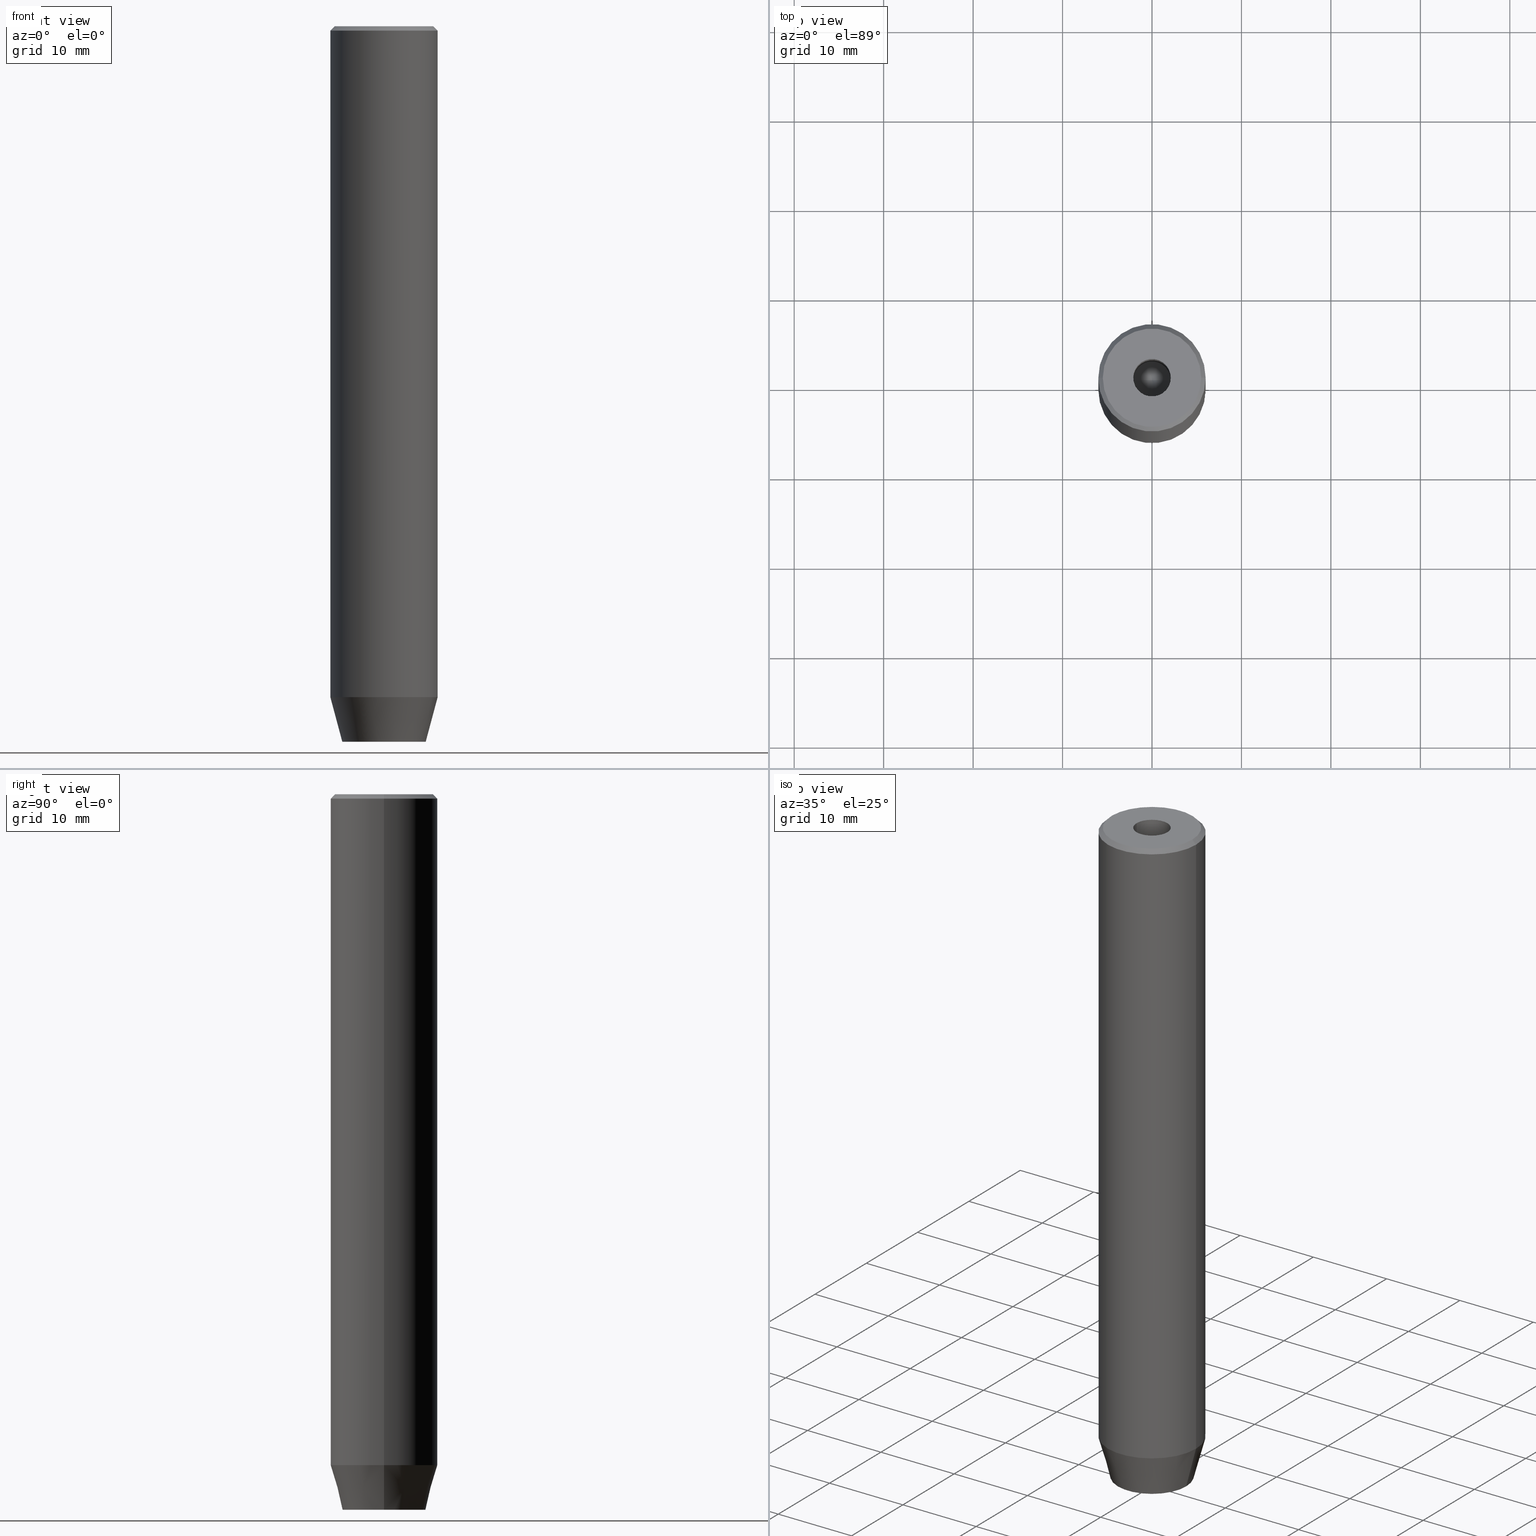
[diagram: canonical four-view strip — front | top / right | iso, engineering-drawing reading convention]
A machine part, canonical four-view strip (front | top / right | iso — engineering-drawing reading convention). The complete STEP part file that produces these views, byte-faithful:
ISO-10303-21;
HEADER;
FILE_DESCRIPTION (( 'STEP AP203' ),
    '1' );
FILE_NAME ('f227.STEP',
    '2024-01-02T21:56:14',
    ( '' ),
    ( '' ),
    'SwSTEP 2.0',
    'SolidWorks 2019',
    '' );
FILE_SCHEMA (( 'CONFIG_CONTROL_DESIGN' ));
ENDSEC;

DATA;
#1 = CARTESIAN_POINT ( 'NONE',  ( 0.000000000000000000, 0.000000000000000000, -0.4999999999999891753 ) ) ;
#2 =( LENGTH_UNIT ( ) NAMED_UNIT ( * ) SI_UNIT ( .MILLI., .METRE. ) );
#3 = VERTEX_POINT ( 'NONE', #404 ) ;
#4 = CONICAL_SURFACE ( 'NONE', #554, 2.099999999999996980, 1.029744258676652535 ) ;
#5 = CIRCLE ( 'NONE', #300, 6.000000000000000000 ) ;
#6 = LINE ( 'NONE', #229, #325 ) ;
#7 = DESIGN_CONTEXT ( 'detailed design', #318, 'design' ) ;
#8 = DIRECTION ( 'NONE',  ( 0.000000000000000000, 0.000000000000000000, -1.000000000000000000 ) ) ;
#9 = EDGE_CURVE ( 'NONE', #205, #222, #98, .T. ) ;
#10 = CARTESIAN_POINT ( 'NONE',  ( 0.000000000000000000, 0.000000000000000000, -77.20000000000001705 ) ) ;
#11 = CARTESIAN_POINT ( 'NONE',  ( 0.000000000000000000, 0.000000000000000000, -1.990051048614449116E-16 ) ) ;
#12 = FACE_OUTER_BOUND ( 'NONE', #39, .T. ) ;
#13 = CC_DESIGN_PERSON_AND_ORGANIZATION_ASSIGNMENT ( #248, #292, ( #574 ) ) ;
#14 = CIRCLE ( 'NONE', #209, 4.660254037844384634 ) ;
#15 = APPROVAL_DATE_TIME ( #331, #438 ) ;
#16 = CARTESIAN_POINT ( 'NONE',  ( -2.500000000000000444, 0.000000000000000000, -77.20000000000001705 ) ) ;
#17 = PERSON_AND_ORGANIZATION_ROLE ( 'design_supplier' ) ;
#18 = CARTESIAN_POINT ( 'NONE',  ( 0.000000000000000000, 0.000000000000000000, -80.00000000000001421 ) ) ;
#19 = EDGE_CURVE ( 'NONE', #121, #321, #22, .T. ) ;
#20 = ORIENTED_EDGE ( 'NONE', *, *, #197, .T. ) ;
#21 = DIRECTION ( 'NONE',  ( -0.000000000000000000, -0.000000000000000000, 1.000000000000000000 ) ) ;
#22 = LINE ( 'NONE', #188, #389 ) ;
#23 = ORIENTED_EDGE ( 'NONE', *, *, #487, .F. ) ;
#24 = DIRECTION ( 'NONE',  ( -0.8660254037844387076, -0.5000000000000001110, 0.000000000000000000 ) ) ;
#25 = VECTOR ( 'NONE', #559, 1000.000000000000000 ) ;
#26 = LOCAL_TIME ( 22, 56, 14.00000000000000000, #118 ) ;
#27 = CARTESIAN_POINT ( 'NONE',  ( 6.000000000000000000, 0.000000000000000000, -0.4999999999999891753 ) ) ;
#28 = ORIENTED_EDGE ( 'NONE', *, *, #177, .T. ) ;
#29 = PERSON_AND_ORGANIZATION ( #488, #372 ) ;
#30 = LINE ( 'NONE', #382, #573 ) ;
#31 = DIRECTION ( 'NONE',  ( 0.8660254037844387076, -0.4999999999999998890, 0.000000000000000000 ) ) ;
#32 = EDGE_CURVE ( 'NONE', #50, #537, #340, .T. ) ;
#33 = ORIENTED_EDGE ( 'NONE', *, *, #445, .T. ) ;
#34 = FACE_OUTER_BOUND ( 'NONE', #51, .T. ) ;
#35 = ORIENTED_EDGE ( 'NONE', *, *, #344, .T. ) ;
#36 = AXIS2_PLACEMENT_3D ( 'NONE', #334, #413, #369 ) ;
#37 = AXIS2_PLACEMENT_3D ( 'NONE', #253, #525, #38 ) ;
#38 = DIRECTION ( 'NONE',  ( 1.000000000000000000, 0.000000000000000000, 0.000000000000000000 ) ) ;
#39 = EDGE_LOOP ( 'NONE', ( #520, #208, #113, #568 ) ) ;
#40 = ADVANCED_FACE ( 'NONE', ( #467 ), #265, .F. ) ;
#41 = CARTESIAN_POINT ( 'NONE',  ( 2.099999999999997868, 0.000000000000000000, 0.000000000000000000 ) ) ;
#42 = ORIENTED_EDGE ( 'NONE', *, *, #280, .T. ) ;
#43 = CARTESIAN_POINT ( 'NONE',  ( 6.000000000000000000, 0.000000000000000000, 0.000000000000000000 ) ) ;
#44 = EDGE_LOOP ( 'NONE', ( #357, #128 ) ) ;
#45 = DIRECTION ( 'NONE',  ( 1.000000000000000000, 0.000000000000000000, 0.000000000000000000 ) ) ;
#46 = AXIS2_PLACEMENT_3D ( 'NONE', #78, #519, #305 ) ;
#47 = AXIS2_PLACEMENT_3D ( 'NONE', #539, #133, #45 ) ;
#48 = ORIENTED_EDGE ( 'NONE', *, *, #240, .F. ) ;
#49 = ADVANCED_FACE ( 'NONE', ( #12 ), #558, .F. ) ;
#50 = VERTEX_POINT ( 'NONE', #108 ) ;
#51 = EDGE_LOOP ( 'NONE', ( #352, #398, #88, #478 ) ) ;
#52 = PLANE ( 'NONE',  #461 ) ;
#53 = FACE_OUTER_BOUND ( 'NONE', #576, .T. ) ;
#54 = ORIENTED_EDGE ( 'NONE', *, *, #270, .T. ) ;
#55 = AXIS2_PLACEMENT_3D ( 'NONE', #501, #190, #274 ) ;
#56 = CC_DESIGN_APPROVAL ( #438, ( #564 ) ) ;
#57 =( NAMED_UNIT ( * ) SI_UNIT ( $, .STERADIAN. ) SOLID_ANGLE_UNIT ( ) );
#58 = CARTESIAN_POINT ( 'NONE',  ( 4.660254037844384634, 0.000000000000000000, -80.00000000000001421 ) ) ;
#59 = ADVANCED_FACE ( 'NONE', ( #551 ), #109, .T. ) ;
#60 = ORIENTED_EDGE ( 'NONE', *, *, #193, .T. ) ;
#61 = DIRECTION ( 'NONE',  ( -0.2588190451025209060, 3.169619151431766790E-17, 0.9659258262890682012 ) ) ;
#62 = PERSON_AND_ORGANIZATION_ROLE ( 'creator' ) ;
#63 = DIRECTION ( 'NONE',  ( -1.000000000000000000, 0.000000000000000000, 0.000000000000000000 ) ) ;
#64 = CARTESIAN_POINT ( 'NONE',  ( 2.500000000000000000, 1.443375672974064328, -77.20000000000001705 ) ) ;
#65 = EDGE_CURVE ( 'NONE', #313, #410, #284, .T. ) ;
#66 = VECTOR ( 'NONE', #570, 1000.000000000000000 ) ;
#67 = APPROVAL_ROLE ( '' ) ;
#68 = VERTEX_POINT ( 'NONE', #64 ) ;
#69 = ORIENTED_EDGE ( 'NONE', *, *, #216, .F. ) ;
#70 = DIRECTION ( 'NONE',  ( 1.000000000000000000, 0.000000000000000000, 0.000000000000000000 ) ) ;
#71 = DIRECTION ( 'NONE',  ( 1.000000000000000000, 0.000000000000000000, 0.000000000000000000 ) ) ;
#72 = DIRECTION ( 'NONE',  ( -0.000000000000000000, -0.000000000000000000, -1.000000000000000000 ) ) ;
#73 = AXIS2_PLACEMENT_3D ( 'NONE', #351, #529, #577 ) ;
#74 = EDGE_CURVE ( 'NONE', #222, #205, #479, .T. ) ;
#75 = CARTESIAN_POINT ( 'NONE',  ( -1.249999999999999556, -2.165063509461096825, -77.20000000000001705 ) ) ;
#76 = ORIENTED_EDGE ( 'NONE', *, *, #409, .F. ) ;
#77 = CALENDAR_DATE ( 2024, 2, 1 ) ;
#78 = CARTESIAN_POINT ( 'NONE',  ( -1.250000000000000444, 2.165063509461097269, -77.20000000000001705 ) ) ;
#79 = ORIENTED_EDGE ( 'NONE', *, *, #543, .F. ) ;
#80 = CARTESIAN_POINT ( 'NONE',  ( 2.500000000000000000, -1.443375672974064106, -80.00000000000001421 ) ) ;
#81 = VERTEX_POINT ( 'NONE', #80 ) ;
#82 = EDGE_CURVE ( 'NONE', #221, #222, #120, .T. ) ;
#83 = VECTOR ( 'NONE', #412, 1000.000000000000000 ) ;
#84 = CARTESIAN_POINT ( 'NONE',  ( 0.000000000000000000, -2.886751345948128211, -77.20000000000001705 ) ) ;
#85 = VERTEX_POINT ( 'NONE', #535 ) ;
#86 = DIRECTION ( 'NONE',  ( -0.000000000000000000, -0.000000000000000000, 1.000000000000000000 ) ) ;
#87 = DIRECTION ( 'NONE',  ( -0.000000000000000000, -0.000000000000000000, -1.000000000000000000 ) ) ;
#88 = ORIENTED_EDGE ( 'NONE', *, *, #206, .T. ) ;
#89 = VERTEX_POINT ( 'NONE', #567 ) ;
#90 = CONICAL_SURFACE ( 'NONE', #236, 6.000000000000000000, 0.2617993877991495744 ) ;
#91 = EDGE_CURVE ( 'NONE', #537, #68, #356, .T. ) ;
#92 = VERTEX_POINT ( 'NONE', #485 ) ;
#93 = PERSON_AND_ORGANIZATION ( #488, #372 ) ;
#94 = DIRECTION ( 'NONE',  ( -0.000000000000000000, -0.000000000000000000, 1.000000000000000000 ) ) ;
#95 = ORIENTED_EDGE ( 'NONE', *, *, #424, .F. ) ;
#96 = ADVANCED_FACE ( 'NONE', ( #303 ), #219, .T. ) ;
#97 = PLANE ( 'NONE',  #512 ) ;
#98 = CIRCLE ( 'NONE', #266, 6.000000000000000000 ) ;
#99 = ORIENTED_EDGE ( 'NONE', *, *, #233, .T. ) ;
#100 = VECTOR ( 'NONE', #580, 1000.000000000000000 ) ;
#101 = APPLICATION_PROTOCOL_DEFINITION ( 'international standard', 'config_control_design', 1994, #125 ) ;
#102 = DIRECTION ( 'NONE',  ( 0.8660254037844385966, 0.5000000000000001110, 0.000000000000000000 ) ) ;
#103 = ORIENTED_EDGE ( 'NONE', *, *, #216, .T. ) ;
#104 = PERSON_AND_ORGANIZATION ( #488, #372 ) ;
#105 = CARTESIAN_POINT ( 'NONE',  ( -2.500000000000000444, -1.443375672974064328, -77.20000000000001705 ) ) ;
#106 = ADVANCED_FACE ( 'NONE', ( #250 ), #474, .F. ) ;
#107 = CALENDAR_DATE ( 2024, 2, 1 ) ;
#108 = CARTESIAN_POINT ( 'NONE',  ( -2.500000000000000444, 1.443375672974064772, -77.20000000000001705 ) ) ;
#109 = CONICAL_SURFACE ( 'NONE', #510, 5.500000000000010658, 0.7853981633974482790 ) ;
#110 = AXIS2_PLACEMENT_3D ( 'NONE', #429, #335, #244 ) ;
#111 = CARTESIAN_POINT ( 'NONE',  ( 0.000000000000000000, -2.886751345948128211, -80.00000000000001421 ) ) ;
#112 = FACE_OUTER_BOUND ( 'NONE', #262, .T. ) ;
#113 = ORIENTED_EDGE ( 'NONE', *, *, #316, .T. ) ;
#114 = CARTESIAN_POINT ( 'NONE',  ( 2.099999999999996980, 0.000000000000000000, -15.00000000000000000 ) ) ;
#115 = ADVANCED_FACE ( 'NONE', ( #342 ), #296, .T. ) ;
#116 = DIRECTION ( 'NONE',  ( -1.000000000000000000, 0.000000000000000000, 0.000000000000000000 ) ) ;
#117 = EDGE_LOOP ( 'NONE', ( #79, #95, #378, #542 ) ) ;
#118 = COORDINATED_UNIVERSAL_TIME_OFFSET ( 1, 0, .AHEAD. ) ;
#119 = CIRCLE ( 'NONE', #337, 5.500000000000010658 ) ;
#120 = LINE ( 'NONE', #160, #534 ) ;
#121 = VERTEX_POINT ( 'NONE', #432 ) ;
#122 = CARTESIAN_POINT ( 'NONE',  ( -6.000000000000000000, 7.347880794884119736E-16, -75.00000000000001421 ) ) ;
#123 = DIRECTION ( 'NONE',  ( -0.7071067811865474617, 0.000000000000000000, -0.7071067811865474617 ) ) ;
#124 = ADVANCED_FACE ( 'NONE', ( #480 ), #430, .F. ) ;
#125 = APPLICATION_CONTEXT ( 'configuration controlled 3d designs of mechanical parts and assemblies' ) ;
#126 = ORIENTED_EDGE ( 'NONE', *, *, #553, .F. ) ;
#127 = DIRECTION ( 'NONE',  ( 1.000000000000000000, 0.000000000000000000, 0.000000000000000000 ) ) ;
#128 = ORIENTED_EDGE ( 'NONE', *, *, #316, .F. ) ;
#129 = LINE ( 'NONE', #136, #494 ) ;
#130 = VECTOR ( 'NONE', #72, 1000.000000000000000 ) ;
#131 = DIRECTION ( 'NONE',  ( 1.000000000000000000, 0.000000000000000000, 0.000000000000000000 ) ) ;
#132 = EDGE_LOOP ( 'NONE', ( #269, #490 ) ) ;
#133 = DIRECTION ( 'NONE',  ( -0.000000000000000000, -0.000000000000000000, 1.000000000000000000 ) ) ;
#134 = FACE_BOUND ( 'NONE', #44, .T. ) ;
#135 = ORIENTED_EDGE ( 'NONE', *, *, #323, .F. ) ;
#136 = CARTESIAN_POINT ( 'NONE',  ( 5.500000000000010658, 6.735557395310455828E-16, 0.000000000000000000 ) ) ;
#137 = ADVANCED_FACE ( 'NONE', ( #34 ), #204, .F. ) ;
#138 = ORIENTED_EDGE ( 'NONE', *, *, #290, .F. ) ;
#139 = VECTOR ( 'NONE', #562, 1000.000000000000000 ) ;
#140 = PRODUCT ( 'f227', 'f227', '', ( #405 ) ) ;
#141 = PERSON_AND_ORGANIZATION ( #488, #372 ) ;
#142 = EDGE_LOOP ( 'NONE', ( #23, #99, #42 ) ) ;
#143 = CC_DESIGN_DATE_AND_TIME_ASSIGNMENT ( #362, #495, ( #223 ) ) ;
#144 = DIRECTION ( 'NONE',  ( 0.000000000000000000, -0.000000000000000000, 1.000000000000000000 ) ) ;
#145 = ORIENTED_EDGE ( 'NONE', *, *, #458, .F. ) ;
#146 = LINE ( 'NONE', #235, #184 ) ;
#147 = APPROVAL_ROLE ( '' ) ;
#148 = CARTESIAN_POINT ( 'NONE',  ( -5.500000000000010658, 0.000000000000000000, 0.000000000000000000 ) ) ;
#149 = DIRECTION ( 'NONE',  ( 0.000000000000000000, 0.000000000000000000, -1.000000000000000000 ) ) ;
#150 = PERSON_AND_ORGANIZATION ( #488, #372 ) ;
#151 = DIRECTION ( 'NONE',  ( -0.000000000000000000, -0.000000000000000000, -1.000000000000000000 ) ) ;
#152 = APPROVAL ( #373, 'NEUR�EN�' ) ;
#153 = DIRECTION ( 'NONE',  ( -0.000000000000000000, -0.000000000000000000, 1.000000000000000000 ) ) ;
#154 = CLOSED_SHELL ( 'NONE', ( #49, #158, #96, #434, #115, #523, #375, #560, #538, #59, #106, #367, #124, #260, #572, #183, #581, #40, #137 ) ) ;
#155 = AXIS2_PLACEMENT_3D ( 'NONE', #11, #366, #584 ) ;
#156 = CC_DESIGN_APPROVAL ( #496, ( #223 ) ) ;
#157 = CARTESIAN_POINT ( 'NONE',  ( -1.250000000000000444, 2.165063509461097269, -77.20000000000001705 ) ) ;
#158 = ADVANCED_FACE ( 'NONE', ( #207 ), #4, .F. ) ;
#159 = DIRECTION ( 'NONE',  ( 1.000000000000000000, 0.000000000000000000, 0.000000000000000000 ) ) ;
#160 = CARTESIAN_POINT ( 'NONE',  ( -5.500000000000010658, 0.000000000000000000, 0.000000000000000000 ) ) ;
#161 = ORIENTED_EDGE ( 'NONE', *, *, #384, .T. ) ;
#162 = CARTESIAN_POINT ( 'NONE',  ( 0.000000000000000000, 0.000000000000000000, 0.000000000000000000 ) ) ;
#163 = ORIENTED_EDGE ( 'NONE', *, *, #475, .T. ) ;
#164 = VECTOR ( 'NONE', #61, 1000.000000000000000 ) ;
#165 = DIRECTION ( 'NONE',  ( 1.000000000000000000, 0.000000000000000000, 0.000000000000000000 ) ) ;
#166 = CC_DESIGN_PERSON_AND_ORGANIZATION_ASSIGNMENT ( #141, #278, ( #140 ) ) ;
#167 = FACE_OUTER_BOUND ( 'NONE', #256, .T. ) ;
#168 = VERTEX_POINT ( 'NONE', #435 ) ;
#169 = LINE ( 'NONE', #84, #66 ) ;
#170 = ORIENTED_EDGE ( 'NONE', *, *, #416, .T. ) ;
#171 = CARTESIAN_POINT ( 'NONE',  ( 2.099999999999996980, 0.000000000000000000, -15.00000000000000000 ) ) ;
#172 = LINE ( 'NONE', #201, #164 ) ;
#173 = VERTEX_POINT ( 'NONE', #390 ) ;
#174 = AXIS2_PLACEMENT_3D ( 'NONE', #583, #350, #541 ) ;
#175 = DIRECTION ( 'NONE',  ( 0.000000000000000000, -1.000000000000000000, 0.000000000000000000 ) ) ;
#176 = ORIENTED_EDGE ( 'NONE', *, *, #384, .F. ) ;
#177 = EDGE_CURVE ( 'NONE', #449, #420, #169, .T. ) ;
#178 = ORIENTED_EDGE ( 'NONE', *, *, #19, .F. ) ;
#179 = CALENDAR_DATE ( 2024, 2, 1 ) ;
#180 = CC_DESIGN_PERSON_AND_ORGANIZATION_ASSIGNMENT ( #150, #565, ( #564 ) ) ;
#181 = DIRECTION ( 'NONE',  ( 0.000000000000000000, 0.000000000000000000, -1.000000000000000000 ) ) ;
#182 = DIRECTION ( 'NONE',  ( 1.000000000000000000, 0.000000000000000000, 0.000000000000000000 ) ) ;
#183 = ADVANCED_FACE ( 'NONE', ( #167 ), #395, .F. ) ;
#184 = VECTOR ( 'NONE', #87, 1000.000000000000000 ) ;
#185 = ORIENTED_EDGE ( 'NONE', *, *, #65, .F. ) ;
#186 = DIRECTION ( 'NONE',  ( 0.000000000000000000, -1.000000000000000000, 0.000000000000000000 ) ) ;
#187 = DIRECTION ( 'NONE',  ( -0.000000000000000000, -0.000000000000000000, 1.000000000000000000 ) ) ;
#188 = CARTESIAN_POINT ( 'NONE',  ( 1.250000000000000222, 2.165063509461096825, -80.00000000000001421 ) ) ;
#189 = DIRECTION ( 'NONE',  ( 1.000000000000000000, 0.000000000000000000, -0.000000000000000000 ) ) ;
#190 = DIRECTION ( 'NONE',  ( -0.000000000000000000, -0.000000000000000000, 1.000000000000000000 ) ) ;
#191 = VECTOR ( 'NONE', #24, 999.9999999999998863 ) ;
#192 = APPROVAL_PERSON_ORGANIZATION ( #93, #496, #147 ) ;
#193 = EDGE_CURVE ( 'NONE', #527, #410, #371, .T. ) ;
#194 = DIRECTION ( 'NONE',  ( 0.000000000000000000, 0.000000000000000000, 1.000000000000000000 ) ) ;
#195 = DIRECTION ( 'NONE',  ( -0.000000000000000000, -0.000000000000000000, 1.000000000000000000 ) ) ;
#196 = CARTESIAN_POINT ( 'NONE',  ( 0.000000000000000000, 0.000000000000000000, 0.000000000000000000 ) ) ;
#197 = EDGE_CURVE ( 'NONE', #361, #173, #257, .T. ) ;
#198 = VECTOR ( 'NONE', #294, 1000.000000000000000 ) ;
#199 = LOCAL_TIME ( 22, 56, 14.00000000000000000, #338 ) ;
#200 = CARTESIAN_POINT ( 'NONE',  ( 2.500000000000000000, 1.443375672974064328, -77.20000000000001705 ) ) ;
#201 = CARTESIAN_POINT ( 'NONE',  ( -6.000000000000000000, 7.347880794884119736E-16, -75.00000000000001421 ) ) ;
#202 = ORIENTED_EDGE ( 'NONE', *, *, #302, .F. ) ;
#203 = PERSON_AND_ORGANIZATION ( #488, #372 ) ;
#204 = CYLINDRICAL_SURFACE ( 'NONE', #37, 2.099999999999997868 ) ;
#205 = VERTEX_POINT ( 'NONE', #27 ) ;
#206 = EDGE_CURVE ( 'NONE', #530, #89, #439, .T. ) ;
#207 = FACE_OUTER_BOUND ( 'NONE', #142, .T. ) ;
#208 = ORIENTED_EDGE ( 'NONE', *, *, #403, .T. ) ;
#209 = AXIS2_PLACEMENT_3D ( 'NONE', #18, #195, #379 ) ;
#210 = DIRECTION ( 'NONE',  ( 0.000000000000000000, 0.000000000000000000, -1.000000000000000000 ) ) ;
#211 = EDGE_LOOP ( 'NONE', ( #578, #228, #33 ) ) ;
#212 = CARTESIAN_POINT ( 'NONE',  ( 2.500000000000000000, -1.443375672974064106, -77.20000000000001705 ) ) ;
#213 = VERTEX_POINT ( 'NONE', #212 ) ;
#214 = UNCERTAINTY_MEASURE_WITH_UNIT (LENGTH_MEASURE( 1.000000000000000082E-05 ), #2, 'distance_accuracy_value', 'NONE');
#215 = LINE ( 'NONE', #497, #198 ) ;
#216 = EDGE_CURVE ( 'NONE', #168, #527, #172, .T. ) ;
#217 = EDGE_LOOP ( 'NONE', ( #463, #319, #532, #431 ) ) ;
#218 = CARTESIAN_POINT ( 'NONE',  ( 0.000000000000000000, 4.660254037844384634, -80.00000000000001421 ) ) ;
#219 = CONICAL_SURFACE ( 'NONE', #267, 5.500000000000010658, 0.7853981633974482790 ) ;
#220 = AXIS2_PLACEMENT_3D ( 'NONE', #491, #189, #548 ) ;
#221 = VERTEX_POINT ( 'NONE', #148 ) ;
#222 = VERTEX_POINT ( 'NONE', #550 ) ;
#223 = PRODUCT_DEFINITION ( 'NEZN�M�', '', #564, #7 ) ;
#224 = FACE_OUTER_BOUND ( 'NONE', #308, .T. ) ;
#225 = CARTESIAN_POINT ( 'NONE',  ( -2.099999999999996980, 2.571758278209438013E-16, -15.00000000000000000 ) ) ;
#226 = VECTOR ( 'NONE', #187, 1000.000000000000000 ) ;
#227 = LOCAL_TIME ( 22, 56, 14.00000000000000000, #234 ) ;
#228 = ORIENTED_EDGE ( 'NONE', *, *, #487, .T. ) ;
#229 = CARTESIAN_POINT ( 'NONE',  ( -1.249999999999999556, -2.165063509461096825, -80.00000000000001421 ) ) ;
#230 = ORIENTED_EDGE ( 'NONE', *, *, #475, .F. ) ;
#231 = DIRECTION ( 'NONE',  ( -0.000000000000000000, -0.000000000000000000, 1.000000000000000000 ) ) ;
#232 = DIRECTION ( 'NONE',  ( 0.5000000000000000000, -0.8660254037844387076, 0.000000000000000000 ) ) ;
#233 = EDGE_CURVE ( 'NONE', #92, #508, #414, .T. ) ;
#234 = COORDINATED_UNIVERSAL_TIME_OFFSET ( 1, 0, .AHEAD. ) ;
#235 = CARTESIAN_POINT ( 'NONE',  ( 2.500000000000000000, -1.443375672974064106, -77.20000000000001705 ) ) ;
#236 = AXIS2_PLACEMENT_3D ( 'NONE', #386, #465, #70 ) ;
#237 = PRODUCT_RELATED_PRODUCT_CATEGORY ( 'detail', '', ( #140 ) ) ;
#238 = FACE_BOUND ( 'NONE', #427, .T. ) ;
#239 = ORIENTED_EDGE ( 'NONE', *, *, #447, .T. ) ;
#240 = EDGE_CURVE ( 'NONE', #321, #81, #452, .T. ) ;
#241 = ADVANCED_BREP_SHAPE_REPRESENTATION ( 'f227', ( #556, #407 ), #482 ) ;
#242 = ORIENTED_EDGE ( 'NONE', *, *, #177, .F. ) ;
#243 = DATE_AND_TIME ( #107, #26 ) ;
#244 = DIRECTION ( 'NONE',  ( 1.000000000000000000, 0.000000000000000000, 0.000000000000000000 ) ) ;
#245 = DIRECTION ( 'NONE',  ( -0.000000000000000000, -0.000000000000000000, 1.000000000000000000 ) ) ;
#246 = VECTOR ( 'NONE', #307, 1000.000000000000000 ) ;
#247 = EDGE_LOOP ( 'NONE', ( #402, #401, #396, #176 ) ) ;
#248 = PERSON_AND_ORGANIZATION ( #488, #372 ) ;
#249 = CARTESIAN_POINT ( 'NONE',  ( 1.249999999999999778, -2.165063509461096380, -77.20000000000001705 ) ) ;
#250 = FACE_OUTER_BOUND ( 'NONE', #446, .T. ) ;
#251 = ORIENTED_EDGE ( 'NONE', *, *, #91, .F. ) ;
#252 = SHAPE_DEFINITION_REPRESENTATION ( #518, #241 ) ;
#253 = CARTESIAN_POINT ( 'NONE',  ( 0.000000000000000000, 0.000000000000000000, 0.000000000000000000 ) ) ;
#254 = ORIENTED_EDGE ( 'NONE', *, *, #91, .T. ) ;
#255 = DIRECTION ( 'NONE',  ( 1.000000000000000000, 0.000000000000000000, 0.000000000000000000 ) ) ;
#256 = EDGE_LOOP ( 'NONE', ( #440, #230, #251, #355 ) ) ;
#257 = LINE ( 'NONE', #397, #436 ) ;
#258 = ORIENTED_EDGE ( 'NONE', *, *, #458, .T. ) ;
#259 = DIRECTION ( 'NONE',  ( 1.000000000000000000, 0.000000000000000000, 0.000000000000000000 ) ) ;
#260 = ADVANCED_FACE ( 'NONE', ( #53 ), #97, .F. ) ;
#261 = CARTESIAN_POINT ( 'NONE',  ( 0.000000000000000000, 0.000000000000000000, 0.000000000000000000 ) ) ;
#262 = EDGE_LOOP ( 'NONE', ( #239, #103, #126, #185 ) ) ;
#263 = PLANE ( 'NONE',  #471 ) ;
#264 = EDGE_LOOP ( 'NONE', ( #492, #304, #453, #28 ) ) ;
#265 = CONICAL_SURFACE ( 'NONE', #345, 2.099999999999996980, 1.029744258676652535 ) ;
#266 = AXIS2_PLACEMENT_3D ( 'NONE', #1, #181, #544 ) ;
#267 = AXIS2_PLACEMENT_3D ( 'NONE', #575, #477, #116 ) ;
#268 = LOCAL_TIME ( 22, 56, 14.00000000000000000, #273 ) ;
#269 = ORIENTED_EDGE ( 'NONE', *, *, #447, .F. ) ;
#270 = EDGE_CURVE ( 'NONE', #213, #81, #146, .T. ) ;
#271 = CARTESIAN_POINT ( 'NONE',  ( 0.000000000000000000, 0.000000000000000000, 0.000000000000000000 ) ) ;
#272 = CC_DESIGN_PERSON_AND_ORGANIZATION_ASSIGNMENT ( #299, #17, ( #564 ) ) ;
#273 = COORDINATED_UNIVERSAL_TIME_OFFSET ( 1, 0, .AHEAD. ) ;
#274 = DIRECTION ( 'NONE',  ( 1.000000000000000000, 0.000000000000000000, 0.000000000000000000 ) ) ;
#275 = DIRECTION ( 'NONE',  ( -0.8571673007021113344, 1.049727191138617463E-16, 0.5150380749100558209 ) ) ;
#276 = CIRCLE ( 'NONE', #110, 2.099999999999996980 ) ;
#277 = VECTOR ( 'NONE', #231, 1000.000000000000000 ) ;
#278 = PERSON_AND_ORGANIZATION_ROLE ( 'design_owner' ) ;
#279 = CARTESIAN_POINT ( 'NONE',  ( -2.500000000000000444, 1.443375672974064772, -77.20000000000001705 ) ) ;
#280 = EDGE_CURVE ( 'NONE', #508, #530, #348, .T. ) ;
#281 = ORIENTED_EDGE ( 'NONE', *, *, #514, .T. ) ;
#282 = APPROVAL_DATE_TIME ( #502, #496 ) ;
#283 = PLANE ( 'NONE',  #481 ) ;
#284 = LINE ( 'NONE', #505, #459 ) ;
#285 = DATE_TIME_ROLE ( 'classification_date' ) ;
#286 = CARTESIAN_POINT ( 'NONE',  ( 0.000000000000000000, 0.000000000000000000, -80.00000000000001421 ) ) ;
#287 = CIRCLE ( 'NONE', #524, 5.500000000000010658 ) ;
#288 = CARTESIAN_POINT ( 'NONE',  ( 0.000000000000000000, 0.000000000000000000, -0.4999999999999891753 ) ) ;
#289 = CC_DESIGN_SECURITY_CLASSIFICATION ( #574, ( #564 ) ) ;
#290 = EDGE_CURVE ( 'NONE', #361, #50, #455, .T. ) ;
#291 = EDGE_LOOP ( 'NONE', ( #69, #385, #547, #582 ) ) ;
#292 = PERSON_AND_ORGANIZATION_ROLE ( 'classification_officer' ) ;
#293 = CARTESIAN_POINT ( 'NONE',  ( -1.249999999999999556, -2.165063509461096825, -77.20000000000001705 ) ) ;
#294 = DIRECTION ( 'NONE',  ( -0.000000000000000000, -0.000000000000000000, 1.000000000000000000 ) ) ;
#295 = DIRECTION ( 'NONE',  ( -0.000000000000000000, -0.000000000000000000, 1.000000000000000000 ) ) ;
#296 = CYLINDRICAL_SURFACE ( 'NONE', #451, 6.000000000000000000 ) ;
#297 = VECTOR ( 'NONE', #151, 1000.000000000000000 ) ;
#298 = ORIENTED_EDGE ( 'NONE', *, *, #354, .T. ) ;
#299 = PERSON_AND_ORGANIZATION ( #488, #372 ) ;
#300 = AXIS2_PLACEMENT_3D ( 'NONE', #484, #86, #259 ) ;
#301 = DIRECTION ( 'NONE',  ( 1.000000000000000000, 0.000000000000000000, 0.000000000000000000 ) ) ;
#302 = EDGE_CURVE ( 'NONE', #420, #173, #6, .T. ) ;
#303 = FACE_OUTER_BOUND ( 'NONE', #217, .T. ) ;
#304 = ORIENTED_EDGE ( 'NONE', *, *, #197, .F. ) ;
#305 = DIRECTION ( 'NONE',  ( -0.8660254037844385966, -0.5000000000000001110, 0.000000000000000000 ) ) ;
#306 = ORIENTED_EDGE ( 'NONE', *, *, #240, .T. ) ;
#307 = DIRECTION ( 'NONE',  ( 0.8660254037844385966, -0.5000000000000001110, 0.000000000000000000 ) ) ;
#308 = EDGE_LOOP ( 'NONE', ( #317, #254, #365, #170, #422, #483 ) ) ;
#309 = EDGE_CURVE ( 'NONE', #89, #85, #563, .T. ) ;
#310 = DIRECTION ( 'NONE',  ( 0.000000000000000000, 0.000000000000000000, -1.000000000000000000 ) ) ;
#311 = APPROVAL_PERSON_ORGANIZATION ( #29, #438, #67 ) ;
#312 = DIRECTION ( 'NONE',  ( -0.000000000000000000, -0.000000000000000000, 1.000000000000000000 ) ) ;
#313 = VERTEX_POINT ( 'NONE', #58 ) ;
#314 = DIRECTION ( 'NONE',  ( 0.8660254037844385966, 0.4999999999999999445, 0.000000000000000000 ) ) ;
#315 = PLANE ( 'NONE',  #220 ) ;
#316 = EDGE_CURVE ( 'NONE', #85, #89, #391, .T. ) ;
#317 = ORIENTED_EDGE ( 'NONE', *, *, #32, .T. ) ;
#318 = APPLICATION_CONTEXT ( 'configuration controlled 3d designs of mechanical parts and assemblies' ) ;
#319 = ORIENTED_EDGE ( 'NONE', *, *, #543, .T. ) ;
#320 = DIRECTION ( 'NONE',  ( 1.000000000000000000, 0.000000000000000000, 0.000000000000000000 ) ) ;
#321 = VERTEX_POINT ( 'NONE', #370 ) ;
#322 = DIRECTION ( 'NONE',  ( 0.000000000000000000, 0.000000000000000000, 1.000000000000000000 ) ) ;
#323 = EDGE_CURVE ( 'NONE', #68, #213, #448, .T. ) ;
#324 = DIRECTION ( 'NONE',  ( 1.000000000000000000, 0.000000000000000000, 0.000000000000000000 ) ) ;
#325 = VECTOR ( 'NONE', #456, 1000.000000000000114 ) ;
#326 = APPROVAL_PERSON_ORGANIZATION ( #203, #152, #506 ) ;
#327 = ORIENTED_EDGE ( 'NONE', *, *, #354, .F. ) ;
#328 = CALENDAR_DATE ( 2024, 2, 1 ) ;
#329 = LINE ( 'NONE', #279, #406 ) ;
#330 = DIRECTION ( 'NONE',  ( -1.000000000000000000, 0.000000000000000000, 0.000000000000000000 ) ) ;
#331 = DATE_AND_TIME ( #464, #199 ) ;
#332 = CARTESIAN_POINT ( 'NONE',  ( 0.000000000000000000, 0.000000000000000000, -15.00000000000000000 ) ) ;
#333 = EDGE_CURVE ( 'NONE', #537, #121, #374, .T. ) ;
#334 = CARTESIAN_POINT ( 'NONE',  ( 0.000000000000000000, 0.000000000000000000, 0.000000000000000000 ) ) ;
#335 = DIRECTION ( 'NONE',  ( -0.000000000000000000, -0.000000000000000000, 1.000000000000000000 ) ) ;
#336 = AXIS2_PLACEMENT_3D ( 'NONE', #353, #531, #127 ) ;
#337 = AXIS2_PLACEMENT_3D ( 'NONE', #196, #295, #159 ) ;
#338 = COORDINATED_UNIVERSAL_TIME_OFFSET ( 1, 0, .AHEAD. ) ;
#339 = CARTESIAN_POINT ( 'NONE',  ( 0.000000000000000000, 0.000000000000000000, 0.000000000000000000 ) ) ;
#340 = LINE ( 'NONE', #157, #522 ) ;
#341 = LINE ( 'NONE', #293, #380 ) ;
#342 = FACE_OUTER_BOUND ( 'NONE', #247, .T. ) ;
#343 = ORIENTED_EDGE ( 'NONE', *, *, #344, .F. ) ;
#344 = EDGE_CURVE ( 'NONE', #486, #121, #360, .T. ) ;
#345 = AXIS2_PLACEMENT_3D ( 'NONE', #376, #415, #71 ) ;
#346 = CARTESIAN_POINT ( 'NONE',  ( 1.250000000000000222, 2.165063509461096825, -77.20000000000001705 ) ) ;
#347 = AXIS2_PLACEMENT_3D ( 'NONE', #332, #94, #324 ) ;
#348 = CIRCLE ( 'NONE', #347, 2.099999999999996980 ) ;
#349 = ORIENTED_EDGE ( 'NONE', *, *, #333, .F. ) ;
#350 = DIRECTION ( 'NONE',  ( -0.000000000000000000, -0.000000000000000000, 1.000000000000000000 ) ) ;
#351 = CARTESIAN_POINT ( 'NONE',  ( 1.250000000000000222, 2.165063509461096825, -77.20000000000001705 ) ) ;
#352 = ORIENTED_EDGE ( 'NONE', *, *, #403, .F. ) ;
#353 = CARTESIAN_POINT ( 'NONE',  ( 0.000000000000000000, 0.000000000000000000, -75.00000000000001421 ) ) ;
#354 = EDGE_CURVE ( 'NONE', #50, #486, #329, .T. ) ;
#355 = ORIENTED_EDGE ( 'NONE', *, *, #333, .T. ) ;
#356 = LINE ( 'NONE', #346, #246 ) ;
#357 = ORIENTED_EDGE ( 'NONE', *, *, #309, .F. ) ;
#358 = AXIS2_PLACEMENT_3D ( 'NONE', #286, #21, #301 ) ;
#359 = CYLINDRICAL_SURFACE ( 'NONE', #47, 6.000000000000000000 ) ;
#360 = LINE ( 'NONE', #540, #536 ) ;
#361 = VERTEX_POINT ( 'NONE', #105 ) ;
#362 = DATE_AND_TIME ( #179, #227 ) ;
#363 = ORIENTED_EDGE ( 'NONE', *, *, #270, .F. ) ;
#364 = VECTOR ( 'NONE', #275, 1000.000000000000000 ) ;
#365 = ORIENTED_EDGE ( 'NONE', *, *, #323, .T. ) ;
#366 = DIRECTION ( 'NONE',  ( -0.000000000000000000, -0.000000000000000000, 1.000000000000000000 ) ) ;
#367 = ADVANCED_FACE ( 'NONE', ( #400 ), #283, .F. ) ;
#368 = CARTESIAN_POINT ( 'NONE',  ( 2.500000000000000000, 0.000000000000000000, -80.00000000000001421 ) ) ;
#369 = DIRECTION ( 'NONE',  ( 1.000000000000000000, 0.000000000000000000, 0.000000000000000000 ) ) ;
#370 = CARTESIAN_POINT ( 'NONE',  ( 2.500000000000000000, 1.443375672974064328, -80.00000000000001421 ) ) ;
#371 = CIRCLE ( 'NONE', #336, 6.000000000000000000 ) ;
#372 = ORGANIZATION ( 'NEUR�EN�', 'NEUR�EN�', '' ) ;
#373 = APPROVAL_STATUS ( 'not_yet_approved' ) ;
#374 = LINE ( 'NONE', #549, #297 ) ;
#375 = ADVANCED_FACE ( 'NONE', ( #134, #418 ), #557, .T. ) ;
#376 = CARTESIAN_POINT ( 'NONE',  ( 0.000000000000000000, 0.000000000000000000, -15.00000000000000000 ) ) ;
#377 = LINE ( 'NONE', #200, #130 ) ;
#378 = ORIENTED_EDGE ( 'NONE', *, *, #82, .T. ) ;
#379 = DIRECTION ( 'NONE',  ( 1.000000000000000000, 0.000000000000000000, 0.000000000000000000 ) ) ;
#380 = VECTOR ( 'NONE', #462, 1000.000000000000114 ) ;
#381 = APPROVAL_STATUS ( 'not_yet_approved' ) ;
#382 = CARTESIAN_POINT ( 'NONE',  ( 1.249999999999999778, -2.165063509461096380, -80.00000000000001421 ) ) ;
#383 = DIRECTION ( 'NONE',  ( -0.4999999999999998890, -0.8660254037844387076, 0.000000000000000000 ) ) ;
#384 = EDGE_CURVE ( 'NONE', #410, #205, #442, .T. ) ;
#385 = ORIENTED_EDGE ( 'NONE', *, *, #504, .T. ) ;
#386 = CARTESIAN_POINT ( 'NONE',  ( 0.000000000000000000, 0.000000000000000000, -75.00000000000001421 ) ) ;
#387 = CARTESIAN_POINT ( 'NONE',  ( 0.000000000000000000, 0.000000000000000000, -15.00000000000000000 ) ) ;
#388 = EDGE_LOOP ( 'NONE', ( #393, #327, #138, #20 ) ) ;
#389 = VECTOR ( 'NONE', #513, 1000.000000000000000 ) ;
#390 = CARTESIAN_POINT ( 'NONE',  ( -2.500000000000000444, -1.443375672974064328, -80.00000000000001421 ) ) ;
#391 = CIRCLE ( 'NONE', #55, 2.099999999999998757 ) ;
#392 = CONICAL_SURFACE ( 'NONE', #174, 6.000000000000000000, 0.2617993877991495744 ) ;
#393 = ORIENTED_EDGE ( 'NONE', *, *, #409, .T. ) ;
#394 = CC_DESIGN_PERSON_AND_ORGANIZATION_ASSIGNMENT ( #104, #62, ( #223 ) ) ;
#395 = PLANE ( 'NONE',  #73 ) ;
#396 = ORIENTED_EDGE ( 'NONE', *, *, #74, .T. ) ;
#397 = CARTESIAN_POINT ( 'NONE',  ( -2.500000000000000444, -1.443375672974064328, -77.20000000000001705 ) ) ;
#398 = ORIENTED_EDGE ( 'NONE', *, *, #445, .F. ) ;
#399 = FACE_OUTER_BOUND ( 'NONE', #291, .T. ) ;
#400 = FACE_OUTER_BOUND ( 'NONE', #388, .T. ) ;
#401 = ORIENTED_EDGE ( 'NONE', *, *, #587, .T. ) ;
#402 = ORIENTED_EDGE ( 'NONE', *, *, #553, .T. ) ;
#403 = EDGE_CURVE ( 'NONE', #508, #85, #215, .T. ) ;
#404 = CARTESIAN_POINT ( 'NONE',  ( 5.500000000000010658, 7.041719095097287782E-16, 0.000000000000000000 ) ) ;
#405 = MECHANICAL_CONTEXT ( 'NONE', #125, 'mechanical' ) ;
#406 = VECTOR ( 'NONE', #503, 1000.000000000000000 ) ;
#407 = AXIS2_PLACEMENT_3D ( 'NONE', #271, #322, #182 ) ;
#408 = CARTESIAN_POINT ( 'NONE',  ( -2.500000000000000444, 0.000000000000000000, -77.20000000000001705 ) ) ;
#409 = EDGE_CURVE ( 'NONE', #173, #486, #421, .T. ) ;
#410 = VERTEX_POINT ( 'NONE', #517 ) ;
#411 = LINE ( 'NONE', #454, #277 ) ;
#412 = DIRECTION ( 'NONE',  ( 0.000000000000000000, 1.000000000000000000, 0.000000000000000000 ) ) ;
#413 = DIRECTION ( 'NONE',  ( -0.000000000000000000, -0.000000000000000000, 1.000000000000000000 ) ) ;
#414 = LINE ( 'NONE', #225, #364 ) ;
#415 = DIRECTION ( 'NONE',  ( -0.000000000000000000, -0.000000000000000000, 1.000000000000000000 ) ) ;
#416 = EDGE_CURVE ( 'NONE', #213, #449, #511, .T. ) ;
#417 = APPLICATION_PROTOCOL_DEFINITION ( 'international standard', 'config_control_design', 1994, #318 ) ;
#418 = FACE_OUTER_BOUND ( 'NONE', #437, .T. ) ;
#419 = CC_DESIGN_APPROVAL ( #152, ( #574 ) ) ;
#420 = VERTEX_POINT ( 'NONE', #111 ) ;
#421 = LINE ( 'NONE', #515, #139 ) ;
#422 = ORIENTED_EDGE ( 'NONE', *, *, #466, .T. ) ;
#423 = CARTESIAN_POINT ( 'NONE',  ( -2.500000000000000444, 1.443375672974064772, -80.00000000000001421 ) ) ;
#424 = EDGE_CURVE ( 'NONE', #221, #3, #287, .T. ) ;
#425 = CIRCLE ( 'NONE', #358, 4.660254037844384634 ) ;
#426 = DIRECTION ( 'NONE',  ( -0.000000000000000000, -0.000000000000000000, -1.000000000000000000 ) ) ;
#427 = EDGE_LOOP ( 'NONE', ( #343, #76, #202, #145, #48, #178 ) ) ;
#428 = DATE_AND_TIME ( #77, #526 ) ;
#429 = CARTESIAN_POINT ( 'NONE',  ( 0.000000000000000000, 0.000000000000000000, -15.00000000000000000 ) ) ;
#430 = PLANE ( 'NONE',  #500 ) ;
#431 = ORIENTED_EDGE ( 'NONE', *, *, #82, .F. ) ;
#432 = CARTESIAN_POINT ( 'NONE',  ( -2.168404344971008868E-16, 2.886751345948129543, -80.00000000000001421 ) ) ;
#433 = ORIENTED_EDGE ( 'NONE', *, *, #424, .T. ) ;
#434 = ADVANCED_FACE ( 'NONE', ( #112 ), #90, .T. ) ;
#435 = CARTESIAN_POINT ( 'NONE',  ( -4.660254037844384634, 6.527522992771886302E-16, -80.00000000000001421 ) ) ;
#436 = VECTOR ( 'NONE', #426, 1000.000000000000000 ) ;
#437 = EDGE_LOOP ( 'NONE', ( #433, #281 ) ) ;
#438 = APPROVAL ( #381, 'NEUR�EN�' ) ;
#439 = LINE ( 'NONE', #41, #100 ) ;
#440 = ORIENTED_EDGE ( 'NONE', *, *, #19, .T. ) ;
#441 = FACE_OUTER_BOUND ( 'NONE', #443, .T. ) ;
#442 = LINE ( 'NONE', #43, #226 ) ;
#443 = EDGE_LOOP ( 'NONE', ( #476, #60, #161, #472 ) ) ;
#444 = DIRECTION ( 'NONE',  ( -1.000000000000000000, 0.000000000000000000, -0.000000000000000000 ) ) ;
#445 = EDGE_CURVE ( 'NONE', #530, #508, #276, .T. ) ;
#446 = EDGE_LOOP ( 'NONE', ( #35, #349, #585, #298 ) ) ;
#447 = EDGE_CURVE ( 'NONE', #313, #168, #14, .T. ) ;
#448 = LINE ( 'NONE', #555, #493 ) ;
#449 = VERTEX_POINT ( 'NONE', #468 ) ;
#450 =( NAMED_UNIT ( * ) PLANE_ANGLE_UNIT ( ) SI_UNIT ( $, .RADIAN. ) );
#451 = AXIS2_PLACEMENT_3D ( 'NONE', #162, #312, #470 ) ;
#452 = LINE ( 'NONE', #368, #469 ) ;
#453 = ORIENTED_EDGE ( 'NONE', *, *, #466, .F. ) ;
#454 = CARTESIAN_POINT ( 'NONE',  ( -6.000000000000000000, 7.347880794884119736E-16, 0.000000000000000000 ) ) ;
#455 = LINE ( 'NONE', #408, #83 ) ;
#456 = DIRECTION ( 'NONE',  ( -0.8660254037844387076, 0.4999999999999998890, 0.000000000000000000 ) ) ;
#457 = DIRECTION ( 'NONE',  ( 0.2588190451025209060, 0.000000000000000000, 0.9659258262890682012 ) ) ;
#458 = EDGE_CURVE ( 'NONE', #81, #420, #30, .T. ) ;
#459 = VECTOR ( 'NONE', #457, 1000.000000000000000 ) ;
#460 = CARTESIAN_POINT ( 'NONE',  ( -2.099999999999996980, 2.571758278209438013E-16, -15.00000000000000000 ) ) ;
#461 = AXIS2_PLACEMENT_3D ( 'NONE', #10, #8, #499 ) ;
#462 = DIRECTION ( 'NONE',  ( -0.8660254037844387076, 0.4999999999999998890, 0.000000000000000000 ) ) ;
#463 = ORIENTED_EDGE ( 'NONE', *, *, #514, .F. ) ;
#464 = CALENDAR_DATE ( 2024, 2, 1 ) ;
#465 = DIRECTION ( 'NONE',  ( -0.000000000000000000, -0.000000000000000000, 1.000000000000000000 ) ) ;
#466 = EDGE_CURVE ( 'NONE', #449, #361, #341, .T. ) ;
#467 = FACE_OUTER_BOUND ( 'NONE', #211, .T. ) ;
#468 = CARTESIAN_POINT ( 'NONE',  ( 0.000000000000000000, -2.886751345948128211, -77.20000000000001705 ) ) ;
#469 = VECTOR ( 'NONE', #175, 1000.000000000000000 ) ;
#470 = DIRECTION ( 'NONE',  ( 1.000000000000000000, 0.000000000000000000, 0.000000000000000000 ) ) ;
#471 = AXIS2_PLACEMENT_3D ( 'NONE', #218, #310, #444 ) ;
#472 = ORIENTED_EDGE ( 'NONE', *, *, #9, .T. ) ;
#473 = SECURITY_CLASSIFICATION_LEVEL ( 'unclassified' ) ;
#474 = PLANE ( 'NONE',  #46 ) ;
#475 = EDGE_CURVE ( 'NONE', #68, #321, #377, .T. ) ;
#476 = ORIENTED_EDGE ( 'NONE', *, *, #587, .F. ) ;
#477 = DIRECTION ( 'NONE',  ( 0.000000000000000000, 0.000000000000000000, -1.000000000000000000 ) ) ;
#478 = ORIENTED_EDGE ( 'NONE', *, *, #309, .T. ) ;
#479 = CIRCLE ( 'NONE', #561, 6.000000000000000000 ) ;
#480 = FACE_OUTER_BOUND ( 'NONE', #264, .T. ) ;
#481 = AXIS2_PLACEMENT_3D ( 'NONE', #16, #63, #194 ) ;
#482 =( GEOMETRIC_REPRESENTATION_CONTEXT ( 3 ) GLOBAL_UNCERTAINTY_ASSIGNED_CONTEXT ( ( #214 ) ) GLOBAL_UNIT_ASSIGNED_CONTEXT ( ( #2, #450, #57 ) ) REPRESENTATION_CONTEXT ( 'NONE', 'WORKASPACE' ) );
#483 = ORIENTED_EDGE ( 'NONE', *, *, #290, .T. ) ;
#484 = CARTESIAN_POINT ( 'NONE',  ( 0.000000000000000000, 0.000000000000000000, -75.00000000000001421 ) ) ;
#485 = CARTESIAN_POINT ( 'NONE',  ( -3.982994051648894933E-15, 0.000000000000000000, -16.26180729995787644 ) ) ;
#486 = VERTEX_POINT ( 'NONE', #423 ) ;
#487 = EDGE_CURVE ( 'NONE', #92, #530, #566, .T. ) ;
#488 = PERSON ( 'NEUR�EN�', 'NEUR�EN�', 'NEUR�EN�', ('NEUR�EN�'), ('NEUR�EN�'), ('NEUR�EN�') ) ;
#489 = CARTESIAN_POINT ( 'NONE',  ( 1.249999999999999778, -2.165063509461096380, -77.20000000000001705 ) ) ;
#490 = ORIENTED_EDGE ( 'NONE', *, *, #504, .F. ) ;
#491 = CARTESIAN_POINT ( 'NONE',  ( 2.500000000000000000, 0.000000000000000000, -77.20000000000001705 ) ) ;
#492 = ORIENTED_EDGE ( 'NONE', *, *, #302, .T. ) ;
#493 = VECTOR ( 'NONE', #186, 1000.000000000000000 ) ;
#494 = VECTOR ( 'NONE', #528, 1000.000000000000114 ) ;
#495 = DATE_TIME_ROLE ( 'creation_date' ) ;
#496 = APPROVAL ( #552, 'NEUR�EN�' ) ;
#497 = CARTESIAN_POINT ( 'NONE',  ( -2.099999999999997868, 2.571758278209438999E-16, 0.000000000000000000 ) ) ;
#498 = ORIENTED_EDGE ( 'NONE', *, *, #416, .F. ) ;
#499 = DIRECTION ( 'NONE',  ( -1.000000000000000000, 0.000000000000000000, -0.000000000000000000 ) ) ;
#500 = AXIS2_PLACEMENT_3D ( 'NONE', #75, #383, #31 ) ;
#501 = CARTESIAN_POINT ( 'NONE',  ( 0.000000000000000000, 0.000000000000000000, -1.990051048614449116E-16 ) ) ;
#502 = DATE_AND_TIME ( #328, #268 ) ;
#503 = DIRECTION ( 'NONE',  ( -0.000000000000000000, -0.000000000000000000, -1.000000000000000000 ) ) ;
#504 = EDGE_CURVE ( 'NONE', #168, #313, #425, .T. ) ;
#505 = CARTESIAN_POINT ( 'NONE',  ( 6.000000000000000000, 0.000000000000000000, -75.00000000000001421 ) ) ;
#506 = APPROVAL_ROLE ( '' ) ;
#507 = CARTESIAN_POINT ( 'NONE',  ( 0.000000000000000000, 0.000000000000000000, 0.000000000000000000 ) ) ;
#508 = VERTEX_POINT ( 'NONE', #460 ) ;
#509 = COORDINATED_UNIVERSAL_TIME_OFFSET ( 1, 0, .AHEAD. ) ;
#510 = AXIS2_PLACEMENT_3D ( 'NONE', #507, #149, #330 ) ;
#511 = LINE ( 'NONE', #249, #191 ) ;
#512 = AXIS2_PLACEMENT_3D ( 'NONE', #489, #232, #314 ) ;
#513 = DIRECTION ( 'NONE',  ( 0.8660254037844385966, -0.5000000000000001110, 0.000000000000000000 ) ) ;
#514 = EDGE_CURVE ( 'NONE', #3, #221, #119, .T. ) ;
#515 = CARTESIAN_POINT ( 'NONE',  ( -2.500000000000000444, 0.000000000000000000, -80.00000000000001421 ) ) ;
#516 = DIRECTION ( 'NONE',  ( 0.8660254037844385966, 0.5000000000000001110, 0.000000000000000000 ) ) ;
#517 = CARTESIAN_POINT ( 'NONE',  ( 6.000000000000000000, 0.000000000000000000, -75.00000000000001421 ) ) ;
#518 = PRODUCT_DEFINITION_SHAPE ( 'NONE', 'NONE',  #223 ) ;
#519 = DIRECTION ( 'NONE',  ( -0.5000000000000001110, 0.8660254037844385966, 0.000000000000000000 ) ) ;
#520 = ORIENTED_EDGE ( 'NONE', *, *, #280, .F. ) ;
#521 = DIRECTION ( 'NONE',  ( -0.8660254037844387076, -0.5000000000000001110, 0.000000000000000000 ) ) ;
#522 = VECTOR ( 'NONE', #516, 1000.000000000000000 ) ;
#523 = ADVANCED_FACE ( 'NONE', ( #238, #579 ), #263, .T. ) ;
#524 = AXIS2_PLACEMENT_3D ( 'NONE', #339, #153, #165 ) ;
#525 = DIRECTION ( 'NONE',  ( -0.000000000000000000, -0.000000000000000000, 1.000000000000000000 ) ) ;
#526 = LOCAL_TIME ( 22, 56, 14.00000000000000000, #509 ) ;
#527 = VERTEX_POINT ( 'NONE', #122 ) ;
#528 = DIRECTION ( 'NONE',  ( 0.7071067811865474617, 8.659560562354932858E-17, -0.7071067811865474617 ) ) ;
#529 = DIRECTION ( 'NONE',  ( 0.5000000000000001110, 0.8660254037844385966, -0.000000000000000000 ) ) ;
#530 = VERTEX_POINT ( 'NONE', #171 ) ;
#531 = DIRECTION ( 'NONE',  ( -0.000000000000000000, -0.000000000000000000, 1.000000000000000000 ) ) ;
#532 = ORIENTED_EDGE ( 'NONE', *, *, #74, .F. ) ;
#533 = CARTESIAN_POINT ( 'NONE',  ( -1.084202172485504434E-16, 2.886751345948129543, -77.20000000000001705 ) ) ;
#534 = VECTOR ( 'NONE', #123, 1000.000000000000114 ) ;
#535 = CARTESIAN_POINT ( 'NONE',  ( -2.099999999999998757, 2.571758278209439985E-16, -1.990051048614449116E-16 ) ) ;
#536 = VECTOR ( 'NONE', #102, 1000.000000000000000 ) ;
#537 = VERTEX_POINT ( 'NONE', #533 ) ;
#538 = ADVANCED_FACE ( 'NONE', ( #399 ), #392, .T. ) ;
#539 = CARTESIAN_POINT ( 'NONE',  ( 0.000000000000000000, 0.000000000000000000, 0.000000000000000000 ) ) ;
#540 = CARTESIAN_POINT ( 'NONE',  ( -1.250000000000000444, 2.165063509461097269, -80.00000000000001421 ) ) ;
#541 = DIRECTION ( 'NONE',  ( 1.000000000000000000, 0.000000000000000000, 0.000000000000000000 ) ) ;
#542 = ORIENTED_EDGE ( 'NONE', *, *, #9, .F. ) ;
#543 = EDGE_CURVE ( 'NONE', #3, #205, #129, .T. ) ;
#544 = DIRECTION ( 'NONE',  ( 1.000000000000000000, 0.000000000000000000, 0.000000000000000000 ) ) ;
#545 = AXIS2_PLACEMENT_3D ( 'NONE', #261, #144, #320 ) ;
#546 = CC_DESIGN_DATE_AND_TIME_ASSIGNMENT ( #428, #285, ( #574 ) ) ;
#547 = ORIENTED_EDGE ( 'NONE', *, *, #65, .T. ) ;
#548 = DIRECTION ( 'NONE',  ( -0.000000000000000000, 0.000000000000000000, -1.000000000000000000 ) ) ;
#549 = CARTESIAN_POINT ( 'NONE',  ( -1.084202172485504434E-16, 2.886751345948129543, -77.20000000000001705 ) ) ;
#550 = CARTESIAN_POINT ( 'NONE',  ( -6.000000000000000000, 7.347880794884119736E-16, -0.4999999999999891753 ) ) ;
#551 = FACE_OUTER_BOUND ( 'NONE', #117, .T. ) ;
#552 = APPROVAL_STATUS ( 'not_yet_approved' ) ;
#553 = EDGE_CURVE ( 'NONE', #410, #527, #5, .T. ) ;
#554 = AXIS2_PLACEMENT_3D ( 'NONE', #387, #245, #255 ) ;
#555 = CARTESIAN_POINT ( 'NONE',  ( 2.500000000000000000, 0.000000000000000000, -77.20000000000001705 ) ) ;
#556 = MANIFOLD_SOLID_BREP ( 'Vrt�k z�vitn�ku pro M5 z�vit1', #154 ) ;
#557 = PLANE ( 'NONE',  #545 ) ;
#558 = CYLINDRICAL_SURFACE ( 'NONE', #36, 2.099999999999997868 ) ;
#559 = DIRECTION ( 'NONE',  ( 0.8571673007021113344, 0.000000000000000000, 0.5150380749100558209 ) ) ;
#560 = ADVANCED_FACE ( 'NONE', ( #441 ), #359, .T. ) ;
#561 = AXIS2_PLACEMENT_3D ( 'NONE', #288, #210, #131 ) ;
#562 = DIRECTION ( 'NONE',  ( 0.000000000000000000, 1.000000000000000000, 0.000000000000000000 ) ) ;
#563 = CIRCLE ( 'NONE', #155, 2.099999999999998757 ) ;
#564 = PRODUCT_DEFINITION_FORMATION_WITH_SPECIFIED_SOURCE ( 'LIBOVOLN�', '', #140, .NOT_KNOWN. ) ;
#565 = PERSON_AND_ORGANIZATION_ROLE ( 'creator' ) ;
#566 = LINE ( 'NONE', #114, #25 ) ;
#567 = CARTESIAN_POINT ( 'NONE',  ( 2.099999999999998757, 0.000000000000000000, -1.990051048614449116E-16 ) ) ;
#568 = ORIENTED_EDGE ( 'NONE', *, *, #206, .F. ) ;
#569 = APPROVAL_DATE_TIME ( #243, #152 ) ;
#570 = DIRECTION ( 'NONE',  ( -0.000000000000000000, -0.000000000000000000, -1.000000000000000000 ) ) ;
#571 = EDGE_LOOP ( 'NONE', ( #306, #363, #135, #163 ) ) ;
#572 = ADVANCED_FACE ( 'NONE', ( #586 ), #315, .F. ) ;
#573 = VECTOR ( 'NONE', #521, 999.9999999999998863 ) ;
#574 = SECURITY_CLASSIFICATION ( '', '', #473 ) ;
#575 = CARTESIAN_POINT ( 'NONE',  ( 0.000000000000000000, 0.000000000000000000, 0.000000000000000000 ) ) ;
#576 = EDGE_LOOP ( 'NONE', ( #258, #242, #498, #54 ) ) ;
#577 = DIRECTION ( 'NONE',  ( -0.8660254037844385966, 0.5000000000000001110, 0.000000000000000000 ) ) ;
#578 = ORIENTED_EDGE ( 'NONE', *, *, #233, .F. ) ;
#579 = FACE_OUTER_BOUND ( 'NONE', #132, .T. ) ;
#580 = DIRECTION ( 'NONE',  ( -0.000000000000000000, -0.000000000000000000, 1.000000000000000000 ) ) ;
#581 = ADVANCED_FACE ( 'NONE', ( #224 ), #52, .T. ) ;
#582 = ORIENTED_EDGE ( 'NONE', *, *, #193, .F. ) ;
#583 = CARTESIAN_POINT ( 'NONE',  ( 0.000000000000000000, 0.000000000000000000, -75.00000000000001421 ) ) ;
#584 = DIRECTION ( 'NONE',  ( 1.000000000000000000, 0.000000000000000000, 0.000000000000000000 ) ) ;
#585 = ORIENTED_EDGE ( 'NONE', *, *, #32, .F. ) ;
#586 = FACE_OUTER_BOUND ( 'NONE', #571, .T. ) ;
#587 = EDGE_CURVE ( 'NONE', #527, #222, #411, .T. ) ;
ENDSEC;
END-ISO-10303-21;
